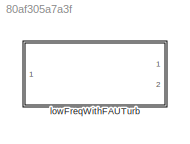
MODEL slx_80af305a7a3f
KIND library
CONFIG AbsTol = auto
CONFIG EnableMultiTasking = off
CONFIG FixedStep = auto
CONFIG MaxStep = auto
CONFIG MinStep = auto
CONFIG RelTol = 1e-3
CONFIG SampleTimeConstraint = Unconstrained
CONFIG Solver = VariableStepAuto
CONFIG SolverName = VariableStepAuto
CONFIG StartTime = 0.0
CONFIG StopTime = 10.0
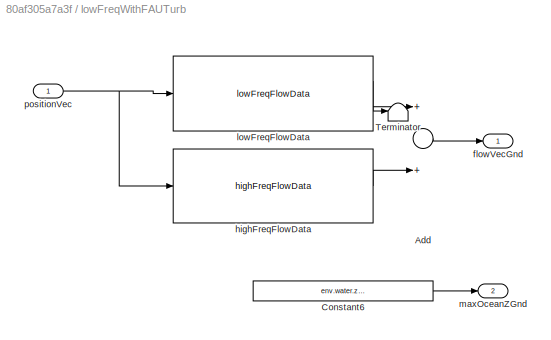
BLOCK [SubSystem] lowFreqWithFAUTurb
  Ports = [1, 2]
  RequestExecContextInheritance = off
BLOCK [Sum] lowFreqWithFAUTurb/Add
  InputSameDT = off
  OutDataTypeStr = Inherit: Inherit via internal rule
  Ports = [2, 1]
  SaturateOnIntegerOverflow = off
BLOCK [Constant] lowFreqWithFAUTurb/Constant6
  Value = env.water.zGridPoints.Value(end)
BLOCK [Terminator] lowFreqWithFAUTurb/Terminator
BLOCK [Outport] lowFreqWithFAUTurb/flowVecGnd
  IconDisplay = Port number
BLOCK [Reference] lowFreqWithFAUTurb/highFreqFlowData  REF=highFreqFlowData_ul/highFreqFlowData
  Ports = [1, 1]
  SourceBlock = highFreqFlowData_ul/highFreqFlowData
  SourceType = SubSystem
BLOCK [Reference] lowFreqWithFAUTurb/lowFreqFlowData  REF=lowFreqFlowData_ul/lowFreqFlowData
  Ports = [1, 2]
  SourceBlock = lowFreqFlowData_ul/lowFreqFlowData
  SourceType = SubSystem
BLOCK [Outport] lowFreqWithFAUTurb/maxOceanZGnd
  IconDisplay = Port number
  Port = 2
BLOCK [Inport] lowFreqWithFAUTurb/positionVec
  IconDisplay = Port number
LINE lowFreqWithFAUTurb/Add:1 -> lowFreqWithFAUTurb/flowVecGnd:1
LINE lowFreqWithFAUTurb/Constant6:1 -> lowFreqWithFAUTurb/maxOceanZGnd:1
LINE lowFreqWithFAUTurb/highFreqFlowData:1 -> lowFreqWithFAUTurb/Add:2
LINE lowFreqWithFAUTurb/lowFreqFlowData:1 -> lowFreqWithFAUTurb/Add:1
LINE lowFreqWithFAUTurb/lowFreqFlowData:2 -> lowFreqWithFAUTurb/Terminator:1
NET lowFreqWithFAUTurb/positionVec:1 -> lowFreqWithFAUTurb/highFreqFlowData:1, lowFreqWithFAUTurb/lowFreqFlowData:1
note: NET lines group one-source signal fan-out (src -> all destinations, sorted); 1:1 wires keep LINE
